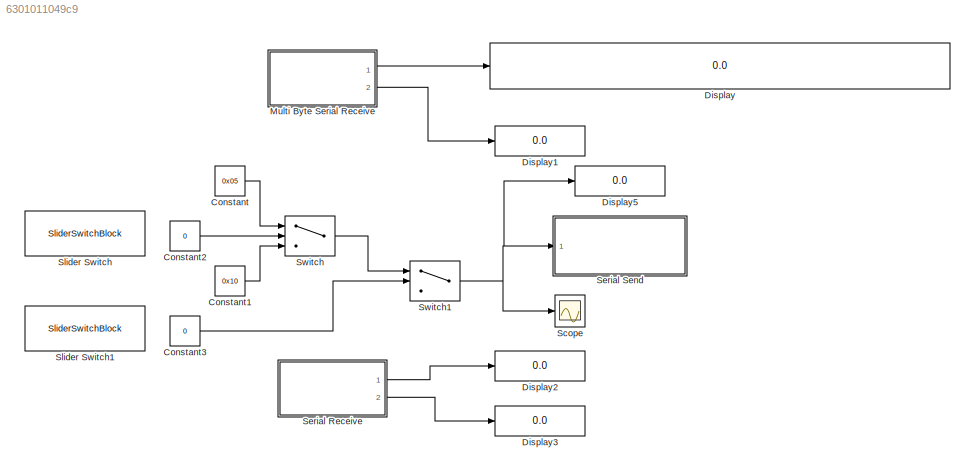
MODEL slx_6301011049c9
KIND model
CONFIG AbsTol = auto
CONFIG EnableMultiTasking = on
CONFIG FixedStep = auto
CONFIG MaxStep = auto
CONFIG MinStep = auto
CONFIG RelTol = 1e-3
CONFIG SampleTimeConstraint = Unconstrained
CONFIG SolverName = ode3
CONFIG StartTime = 0.0
CONFIG StopTime = inf
BLOCK [Constant] Constant
  OutDataTypeStr = uint8
  Value = 0x05
BLOCK [Constant] Constant1
  OutDataTypeStr = uint8
  Value = 0x10
BLOCK [Constant] Constant2
  OutDataTypeStr = uint8
  Value = 0
BLOCK [Constant] Constant3
  OutDataTypeStr = uint8
  Value = 0
BLOCK [Display] Display
  Commented = on
  Decimation = 1
  Ports = [1]
BLOCK [Display] Display1
  Commented = on
  Decimation = 1
  Ports = [1]
BLOCK [Display] Display2
  Commented = on
  Decimation = 1
  Ports = [1]
BLOCK [Display] Display3
  Commented = on
  Decimation = 1
  Ports = [1]
BLOCK [Display] Display5
  Decimation = 1
  Format = hex (Stored Integer)
  Ports = [1]
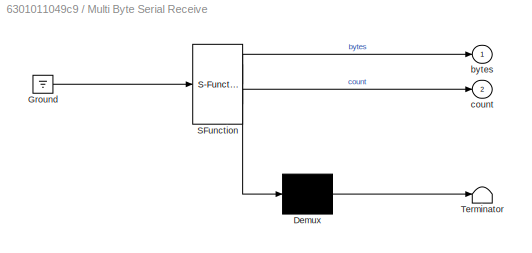
BLOCK [SubSystem] Multi Byte Serial Receive
  Commented = on
  ErrorFcn = Stateflow.Translate.translate
  PermitHierarchicalResolution = ExplicitOnly
  Ports = [0, 2]
  RequestExecContextInheritance = off
  SFBlockType = MATLAB Function
  TreatAsAtomicUnit = on
BLOCK [Demux] Multi Byte Serial Receive/ Demux 
  Outputs = 1
  Ports = [1, 1]
BLOCK [Ground] Multi Byte Serial Receive/ Ground 
BLOCK [S-Function] Multi Byte Serial Receive/ SFunction 
  EnableBusSupport = on
  FunctionName = sf_sfun
  PortCounts = [1 3]
  Ports = [1, 3]
  SFcnIsStateOwnerBlock = off
  SFunctionDeploymentMode = off
  Tag = Stateflow S-Function 2
BLOCK [Terminator] Multi Byte Serial Receive/ Terminator 
BLOCK [Outport] Multi Byte Serial Receive/bytes
BLOCK [Outport] Multi Byte Serial Receive/count
  Port = 2
BLOCK [Scope] Scope
  Floating = off
  NumInputPorts = 1
  Ports = [1]
  ScopeSpecificationString = Simulink.scopes.TimeScopeBlockCfg('CurrentConfiguration', extmgr.ConfigurationSet(extmgr.Configuration('Core','General UI',true),extmgr.Configuration('Core','Source UI',true),extmgr.Configuration('Sources','WiredSimulink',true),extmgr.Configuration('Visuals','Time Domain',true,'SerializedDisplays',{struct('MinYLimReal','-0.875','MaxYLimReal','17.875','YLabelReal','','MinYLimMag','0.00000','MaxYLim...<+1457ch>
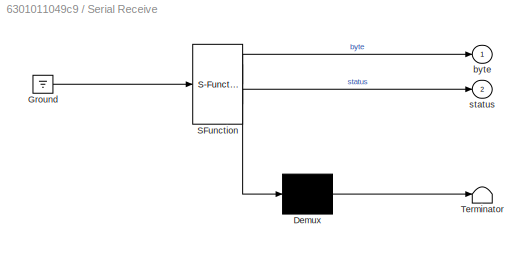
BLOCK [SubSystem] Serial Receive
  Commented = on
  ErrorFcn = Stateflow.Translate.translate
  PermitHierarchicalResolution = ExplicitOnly
  Ports = [0, 2]
  RequestExecContextInheritance = off
  SFBlockType = MATLAB Function
  TreatAsAtomicUnit = on
BLOCK [Demux] Serial Receive/ Demux 
  Outputs = 1
  Ports = [1, 1]
BLOCK [Ground] Serial Receive/ Ground 
BLOCK [S-Function] Serial Receive/ SFunction 
  EnableBusSupport = on
  FunctionName = sf_sfun
  PortCounts = [1 3]
  Ports = [1, 3]
  SFcnIsStateOwnerBlock = off
  SFunctionDeploymentMode = off
  Tag = Stateflow S-Function 1
BLOCK [Terminator] Serial Receive/ Terminator 
BLOCK [Outport] Serial Receive/byte
BLOCK [Outport] Serial Receive/status
  Port = 2
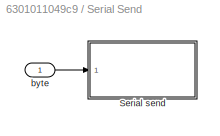
BLOCK [SubSystem] Serial Send
  Ports = [1]
  RequestExecContextInheritance = off
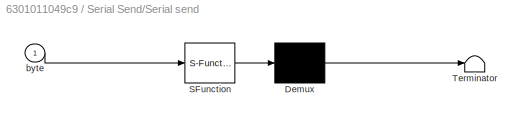
BLOCK [SubSystem] Serial Send/Serial send
  ErrorFcn = Stateflow.Translate.translate
  PermitHierarchicalResolution = ExplicitOnly
  Ports = [1]
  RequestExecContextInheritance = off
  SFBlockType = MATLAB Function
  TreatAsAtomicUnit = on
BLOCK [Demux] Serial Send/Serial send/ Demux 
  Outputs = 1
  Ports = [1, 1]
BLOCK [S-Function] Serial Send/Serial send/ SFunction 
  EnableBusSupport = on
  FunctionName = sf_sfun
  PortCounts = [1 1]
  Ports = [1, 1]
  SFcnIsStateOwnerBlock = off
  SFunctionDeploymentMode = off
  Tag = Stateflow S-Function 3
BLOCK [Terminator] Serial Send/Serial send/ Terminator 
BLOCK [Inport] Serial Send/Serial send/byte
BLOCK [Inport] Serial Send/byte
  OutDataTypeStr = uint8
  PortDimensions = [1 1]
BLOCK [SliderSwitchBlock] Slider Switch
BLOCK [SliderSwitchBlock] Slider Switch1
BLOCK [Switch] Switch
  Criteria = u2 > Threshold
  InputSameDT = off
  SaturateOnIntegerOverflow = off
BLOCK [Switch] Switch1
  Criteria = u2 > Threshold
  InputSameDT = off
  SaturateOnIntegerOverflow = off
LINE Constant1:1 -> Switch:3
LINE Constant2:1 -> Switch:2
LINE Constant3:1 -> Switch1:2
LINE Constant:1 -> Switch:1
LINE Multi Byte Serial Receive:1 -> Display:1
LINE Multi Byte Serial Receive:2 -> Display1:1
LINE Serial Receive:1 -> Display2:1
LINE Serial Receive:2 -> Display3:1
LINE Serial Send/byte:1 -> Serial Send/Serial send:1
NET Switch1:1 -> Display5:1, Scope:1, Serial Send:1
LINE Switch:1 -> Switch1:1
note: NET lines group one-source signal fan-out (src -> all destinations, sorted); 1:1 wires keep LINE
CHART Multi Byte Serial Receive states=1 transitions=1
  STATE_LABEL 'eML_blk_kernel()'
  STATE_LABEL 'SCRIPT:\nfunction [bytes, count] = fcn()\n% serial receive\n% returns a fixed size array/buffer\n\n%#codegen\npersistent isFirstRun\n% first "count" bytes correspond to received bytes. rest are kept zero\nbufferSize = uint8(50);\ncount = uint8(0);\nbytes = uint8(zeros(1,bufferSize));\n\nif coder.target(\'Rtw\')\n    coder.cinclude(\'API.h\');\n    coder.cinclude(\'string.h\');\n    file = coder.opaque(\'FILE *\', \'uart1...<+367ch>'
CHART Serial Send/Serial send states=1 transitions=1
  STATE_LABEL 'eML_blk_kernel()'
  STATE_LABEL "SCRIPT:\nfunction fcn(byte)\n% Serial send single byte\n%#codegen\n\n% Config\nport = 'uart1';\nbaud = uint32(600);\n\npersistent isFirstRun\n\nif coder.target('Rtw')\n    coder.cinclude('API.h');\n    coder.cinclude('string.h');\n    file = coder.opaque('FILE *', port,'HeaderFile','API.h');\n\n    if isempty(isFirstRun)\n        % first time setup\n        isFirstRun = false;\n\n        flags = coder.opaque('uint16'...<+126ch>"
CHART Serial Receive states=1 transitions=1
  STATE_LABEL 'eML_blk_kernel()'
  STATE_LABEL "SCRIPT:\nfunction [byte, status] = fcn()\n% serial receive (blocking till a byte is read)\n% returns a uint8 byte and status (0 if nothing can be read)\n\n%#codegen\n\n% Config\nport = 'uart1';\nbaud = uint32(600);\n\npersistent isFirstRun\nreadout = int32(0);\nbyte = uint8(0);\nstatus = false;\n\nif coder.target('Rtw')\n    coder.cinclude('API.h');\n    coder.cinclude('string.h');\n    file = coder.opaque('FILE *',...<+425ch>"
CHART  states=0 transitions=0
CHART  states=0 transitions=0
CHART  states=0 transitions=0
